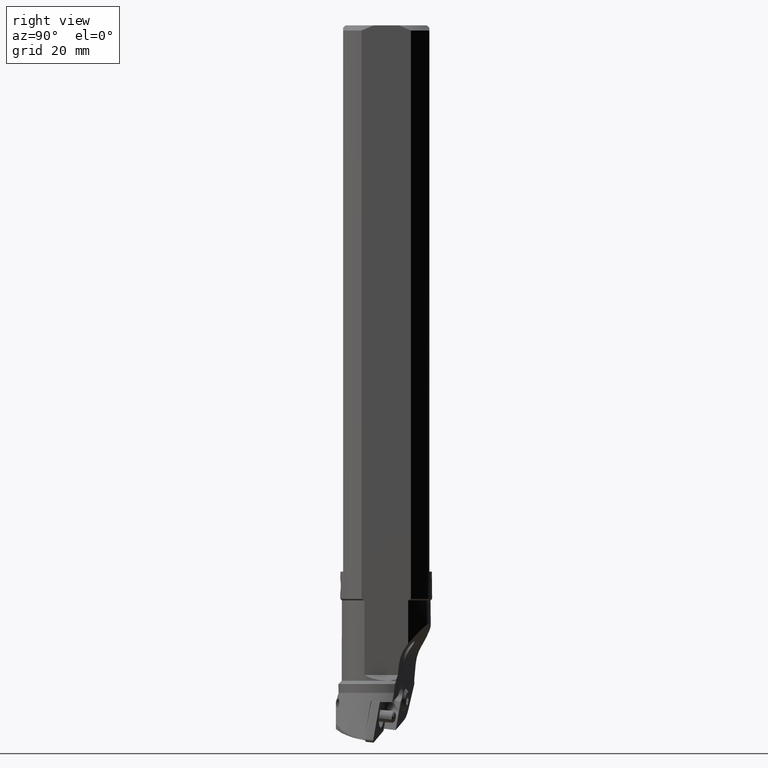
[diagram: clean part render]
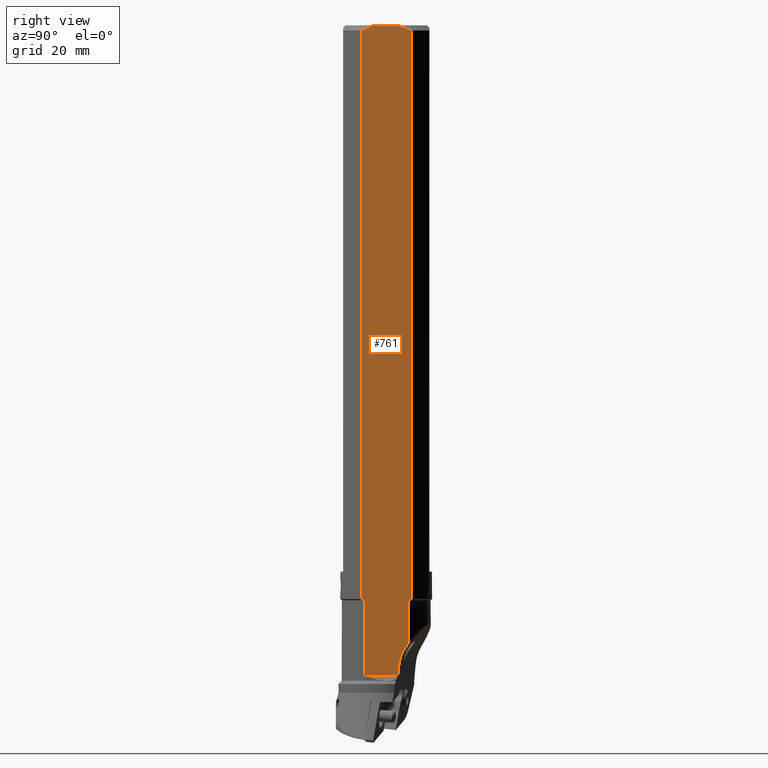
[diagram: same view with one face highlighted and labeled with its STEP entity id]
A machine part, right view. The second image highlights one B-rep face of the part: STEP entity #761.
In plain terms, the highlighted planar face has unit normal (1, 0, 0).
Its self-contained STEP definition (entity closure, byte-faithful):
#130=PLANE('',#3942);
#297=LINE('',#5809,#526);
#309=LINE('',#5949,#538);
#310=LINE('',#5955,#539);
#314=LINE('',#6044,#543);
#315=LINE('',#6050,#544);
#316=LINE('',#6057,#545);
#317=LINE('',#6064,#546);
#318=LINE('',#6070,#547);
#526=VECTOR('',#4454,1.);
#538=VECTOR('',#4522,1.);
#539=VECTOR('',#4527,1.);
#543=VECTOR('',#4551,1.);
#544=VECTOR('',#4552,1.);
#545=VECTOR('',#4553,1.);
#546=VECTOR('',#4554,1.);
#547=VECTOR('',#4555,1.);
#761=ADVANCED_FACE('',(#1006),#130,.T.);
#1006=FACE_OUTER_BOUND('',#1202,.T.);
#1202=EDGE_LOOP('',(#1887,#1888,#1889,#1890,#1891,#1892,#1893,#1894,#1895,
#1896,#1897,#1898,#1899));
#1550=ELLIPSE('',#3940,12.8288013474318,12.5);
#1887=ORIENTED_EDGE('',*,*,#3185,.T.);
#1888=ORIENTED_EDGE('',*,*,#3168,.F.);
#1889=ORIENTED_EDGE('',*,*,#3186,.T.);
#1890=ORIENTED_EDGE('',*,*,#3187,.T.);
#1891=ORIENTED_EDGE('',*,*,#3188,.T.);
#1892=ORIENTED_EDGE('',*,*,#3189,.T.);
#1893=ORIENTED_EDGE('',*,*,#3190,.T.);
#1894=ORIENTED_EDGE('',*,*,#3191,.T.);
#1895=ORIENTED_EDGE('',*,*,#3192,.T.);
#1896=ORIENTED_EDGE('',*,*,#3165,.F.);
#1897=ORIENTED_EDGE('',*,*,#3193,.F.);
#1898=ORIENTED_EDGE('',*,*,#3126,.F.);
#1899=ORIENTED_EDGE('',*,*,#3184,.T.);
#2743=VERTEX_POINT('',#5808);
#2744=VERTEX_POINT('',#5810);
#2766=VERTEX_POINT('',#5948);
#2767=VERTEX_POINT('',#5950);
#2769=VERTEX_POINT('',#5954);
#2770=VERTEX_POINT('',#5956);
#2780=VERTEX_POINT('',#6041);
#2781=VERTEX_POINT('',#6049);
#2782=VERTEX_POINT('',#6051);
#2783=VERTEX_POINT('',#6056);
#2784=VERTEX_POINT('',#6058);
#2785=VERTEX_POINT('',#6063);
#2786=VERTEX_POINT('',#6065);
#3126=EDGE_CURVE('',#2743,#2744,#297,.T.);
#3165=EDGE_CURVE('',#2766,#2767,#309,.T.);
#3168=EDGE_CURVE('',#2769,#2770,#310,.T.);
#3184=EDGE_CURVE('',#2743,#2780,#1550,.T.);
#3185=EDGE_CURVE('',#2780,#2770,#314,.T.);
#3186=EDGE_CURVE('',#2769,#2781,#3612,.T.);
#3187=EDGE_CURVE('',#2781,#2782,#315,.T.);
#3188=EDGE_CURVE('',#2782,#2783,#3613,.T.);
#3189=EDGE_CURVE('',#2783,#2784,#316,.T.);
#3190=EDGE_CURVE('',#2784,#2785,#3614,.T.);
#3191=EDGE_CURVE('',#2785,#2786,#317,.T.);
#3192=EDGE_CURVE('',#2786,#2767,#3615,.T.);
#3193=EDGE_CURVE('',#2744,#2766,#318,.T.);
#3612=B_SPLINE_CURVE_WITH_KNOTS('',3,(#6045,#6046,#6047,#6048),
 .UNSPECIFIED.,.F.,.F.,(4,4),(0.,1.),.UNSPECIFIED.);
#3613=B_SPLINE_CURVE_WITH_KNOTS('',3,(#6052,#6053,#6054,#6055),
 .UNSPECIFIED.,.F.,.F.,(4,4),(0.,1.),.UNSPECIFIED.);
#3614=B_SPLINE_CURVE_WITH_KNOTS('',3,(#6059,#6060,#6061,#6062),
 .UNSPECIFIED.,.F.,.F.,(4,4),(0.,1.),.UNSPECIFIED.);
#3615=B_SPLINE_CURVE_WITH_KNOTS('',3,(#6066,#6067,#6068,#6069),
 .UNSPECIFIED.,.F.,.F.,(4,4),(0.,1.),.UNSPECIFIED.);
#3940=AXIS2_PLACEMENT_3D('',#6042,#4547,#4548);
#3942=AXIS2_PLACEMENT_3D('',#6071,#4556,#4557);
#4454=DIRECTION('',(3.74655318388607E-12,-0.107246767232302,-0.994232433044819));
#4522=DIRECTION('',(-1.80724281366697E-7,-6.25073042134889E-8,0.999999999999982));
#4527=DIRECTION('',(-1.826466753566E-13,7.49973299143498E-8,-0.999999999999997));
#4547=DIRECTION('',(-1.,0.,0.));
#4548=DIRECTION('',(0.,1.,0.));
#4551=DIRECTION('',(5.87949028923591E-12,0.597767658646191,0.801669399613488));
#4552=DIRECTION('',(0.,0.,1.));
#4553=DIRECTION('',(0.,-1.,0.));
#4554=DIRECTION('',(0.,-5.526286216003E-9,-1.));
#4555=DIRECTION('',(-1.64624952169E-14,-1.,0.));
#4556=DIRECTION('',(1.,0.,0.));
#4557=DIRECTION('',(0.,0.,1.));
#5808=CARTESIAN_POINT('',(13.4999999999949,4.44818094305567,-222.171963153968));
#5809=CARTESIAN_POINT('',(13.49999999999,4.448180943133,-222.1719631539));
#5810=CARTESIAN_POINT('',(13.5,4.037778565837,-225.9766032809));
#5948=CARTESIAN_POINT('',(13.4999999999999,-7.61577310586403,-225.9766032809));
#5949=CARTESIAN_POINT('',(13.5,-7.615773105864,-225.9766032809));
#5950=CARTESIAN_POINT('',(13.4999976526988,-7.61577391772757,-200.000001645537));
#5954=CARTESIAN_POINT('',(13.5,7.61577254057656,-200.000000277763));
#5955=CARTESIAN_POINT('',(13.5,7.615771975289,-199.9999977009));
#5956=CARTESIAN_POINT('',(13.5000000000229,7.61577310582325,-215.074748422165));
#6041=CARTESIAN_POINT('',(13.5,6.82798646707841,-216.131253290768));
#6042=CARTESIAN_POINT('',(13.5,17.2067047743498,-223.4785689447));
#6044=CARTESIAN_POINT('',(13.49999999999,6.827986466966,-216.131253291));
#6045=CARTESIAN_POINT('',(13.5,7.61577254057656,-200.000000277763));
#6046=CARTESIAN_POINT('',(13.5,7.94278802367178,-199.839324424784));
#6047=CARTESIAN_POINT('',(13.5,8.26674550971791,-199.672311972441));
#6048=CARTESIAN_POINT('',(13.5,8.587782018659,-199.500000000015));
#6049=CARTESIAN_POINT('',(13.5,8.587782018659,-199.500000000015));
#6050=CARTESIAN_POINT('',(13.5,8.587782018659,-199.5));
#6051=CARTESIAN_POINT('',(13.5,8.58778201865898,-1.80000000000004));
#6052=CARTESIAN_POINT('',(13.5,8.58778201865896,-1.80000000000007));
#6053=CARTESIAN_POINT('',(13.5,7.24493576087415,-1.07924556584833));
#6054=CARTESIAN_POINT('',(13.5,5.86176358135773,-0.452234880805942));
#6055=CARTESIAN_POINT('',(13.5,4.40340777126098,-5.51954399450912E-14));
#6056=CARTESIAN_POINT('',(13.5,4.40340777126089,-6.52583091190926E-15));
#6057=CARTESIAN_POINT('',(13.5,4.403407771261,0.));
#6058=CARTESIAN_POINT('',(13.5,-4.40340777126089,-4.50340056629453E-15));
#6059=CARTESIAN_POINT('',(13.5,-4.40340777126097,-5.33556495124271E-14));
#6060=CARTESIAN_POINT('',(13.5,-5.86176358135767,-0.452234880805923));
#6061=CARTESIAN_POINT('',(13.5,-7.2449357608742,-1.07924556584836));
#6062=CARTESIAN_POINT('',(13.5,-8.58778201865896,-1.80000000000007));
#6063=CARTESIAN_POINT('',(13.5,-8.587782018659,-1.80000000000004));
#6064=CARTESIAN_POINT('',(13.5,-8.587782018659,-1.8));
#6065=CARTESIAN_POINT('',(13.5,-8.58778256525895,-199.49999999984));
#6066=CARTESIAN_POINT('',(13.5,-8.58778256525895,-199.49999999984));
#6067=CARTESIAN_POINT('',(13.5,-8.26674608945827,-199.672311954487));
#6068=CARTESIAN_POINT('',(13.4999976526988,-7.94278936706429,-199.839325809133));
#6069=CARTESIAN_POINT('',(13.4999976526988,-7.61577391772757,-200.000001645537));
#6070=CARTESIAN_POINT('',(13.5,4.037778565837,-225.9766032809));
#6071=CARTESIAN_POINT('',(13.5,-1.638819949523E-6,-112.9883016405));